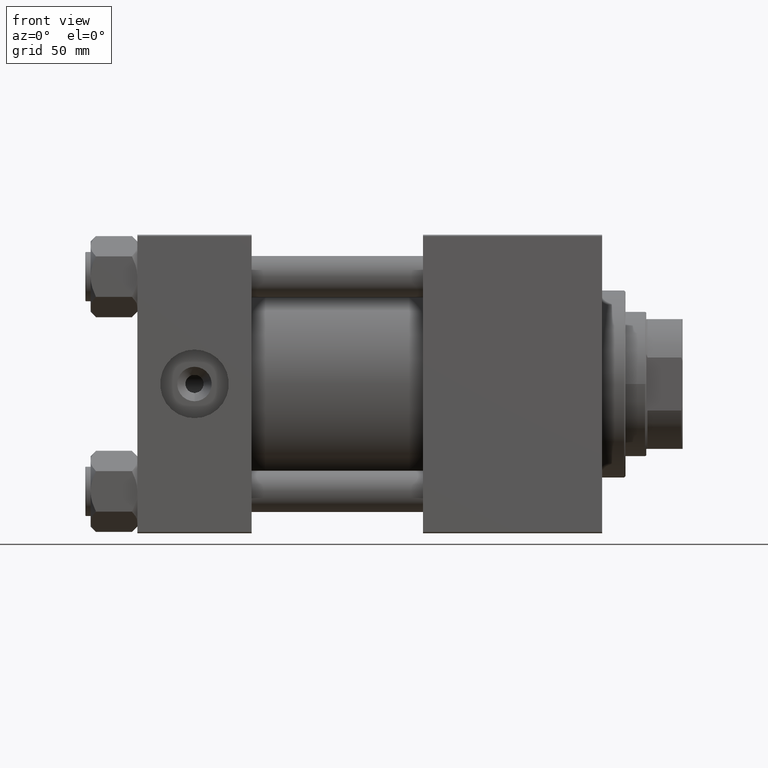
[diagram: clean part render]
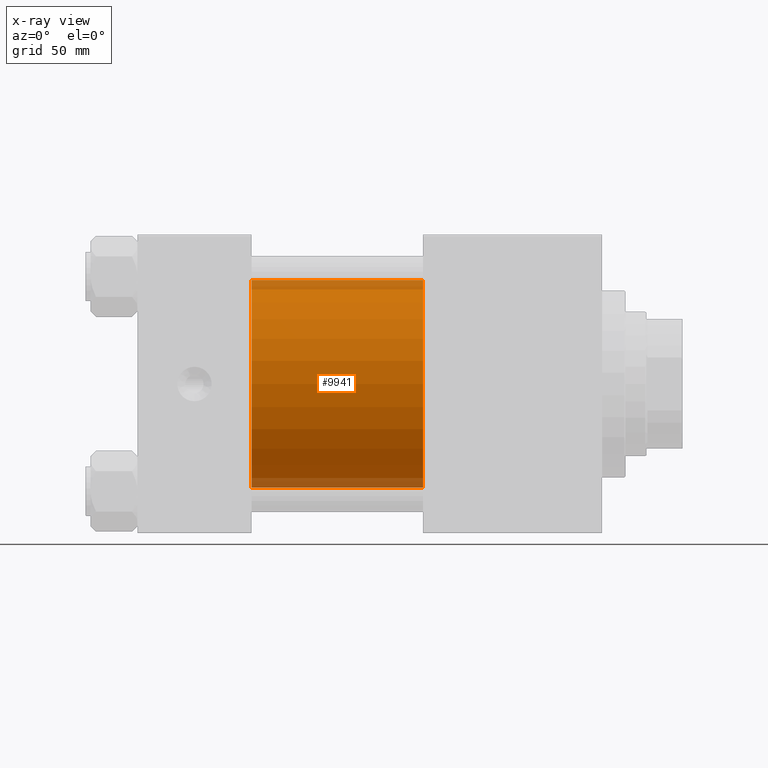
[diagram: x-ray — body ghosted, one internal face saturated and labeled with its STEP entity id]
A machine part, front view, then the same camera in x-ray: the body is ghosted and one INTERNAL B-rep face — a face not visible from any outside direction — is saturated and labeled: STEP entity #9941.
In plain terms, the highlighted cylindrical surface (partial cylindrical patch) has radius 40 mm, axis along (-1, -0, -0).
Its self-contained STEP definition (entity closure, byte-faithful):
#1832 = DIRECTION ( 'NONE',  ( -1.000000000000000000, -0.000000000000000000, -0.000000000000000000 ) ) ;
#3491 = EDGE_CURVE ( 'NONE', #18546, #11628, #15566, .T. ) ;
#3683 = DIRECTION ( 'NONE',  ( 0.000000000000000000, 0.000000000000000000, -1.000000000000000000 ) ) ;
#4247 = VECTOR ( 'NONE', #1832, 1000.000000000000000 ) ;
#5678 = LINE ( 'NONE', #36772, #4247 ) ;
#6640 = CYLINDRICAL_SURFACE ( 'NONE', #17913, 40.00000000000000000 ) ;
#6983 = ORIENTED_EDGE ( 'NONE', *, *, #34691, .F. ) ;
#9941 = ADVANCED_FACE ( 'NONE', ( #27186 ), #6640, .F. ) ;
#11483 = EDGE_CURVE ( 'NONE', #18546, #44287, #39310, .T. ) ;
#11628 = VERTEX_POINT ( 'NONE', #27673 ) ;
#11895 = CARTESIAN_POINT ( 'NONE',  ( 44.00000000000000000, -2.602085213965210642E-15, 0.000000000000000000 ) ) ;
#12039 = AXIS2_PLACEMENT_3D ( 'NONE', #11895, #23695, #3683 ) ;
#13531 = ORIENTED_EDGE ( 'NONE', *, *, #11483, .T. ) ;
#13826 = DIRECTION ( 'NONE',  ( 0.000000000000000000, 0.000000000000000000, -1.000000000000000000 ) ) ;
#15301 = ORIENTED_EDGE ( 'NONE', *, *, #3491, .F. ) ;
#15566 = LINE ( 'NONE', #15816, #21055 ) ;
#15816 = CARTESIAN_POINT ( 'NONE',  ( 110.0000000000000000, -2.602085213965210642E-15, 40.00000000000000000 ) ) ;
#17144 = AXIS2_PLACEMENT_3D ( 'NONE', #22026, #21777, #13826 ) ;
#17913 = AXIS2_PLACEMENT_3D ( 'NONE', #26938, #19216, #26682 ) ;
#18546 = VERTEX_POINT ( 'NONE', #49123 ) ;
#19216 = DIRECTION ( 'NONE',  ( -1.000000000000000000, -0.000000000000000000, -0.000000000000000000 ) ) ;
#19717 = EDGE_LOOP ( 'NONE', ( #13531, #43797, #6983, #15301 ) ) ;
#21055 = VECTOR ( 'NONE', #34607, 1000.000000000000000 ) ;
#21777 = DIRECTION ( 'NONE',  ( 1.000000000000000000, 0.000000000000000000, 0.000000000000000000 ) ) ;
#22026 = CARTESIAN_POINT ( 'NONE',  ( 110.0000000000000000, -2.602085213965210642E-15, 0.000000000000000000 ) ) ;
#23695 = DIRECTION ( 'NONE',  ( 1.000000000000000000, 0.000000000000000000, 0.000000000000000000 ) ) ;
#23944 = CARTESIAN_POINT ( 'NONE',  ( 110.0000000000000000, 2.296501982624201990E-15, -40.00000000000000000 ) ) ;
#26682 = DIRECTION ( 'NONE',  ( 0.000000000000000000, 0.000000000000000000, 1.000000000000000000 ) ) ;
#26938 = CARTESIAN_POINT ( 'NONE',  ( 110.0000000000000000, -2.602085213965210642E-15, 0.000000000000000000 ) ) ;
#27186 = FACE_OUTER_BOUND ( 'NONE', #19717, .T. ) ;
#27673 = CARTESIAN_POINT ( 'NONE',  ( 44.00000000000000000, -2.602085213965210642E-15, 40.00000000000000000 ) ) ;
#31482 = CARTESIAN_POINT ( 'NONE',  ( 44.00000000000000000, 2.296501982624201990E-15, -40.00000000000000000 ) ) ;
#32578 = CIRCLE ( 'NONE', #12039, 40.00000000000000000 ) ;
#34607 = DIRECTION ( 'NONE',  ( -1.000000000000000000, -0.000000000000000000, -0.000000000000000000 ) ) ;
#34691 = EDGE_CURVE ( 'NONE', #11628, #48300, #32578, .T. ) ;
#36772 = CARTESIAN_POINT ( 'NONE',  ( 110.0000000000000000, 2.296501982624201990E-15, -40.00000000000000000 ) ) ;
#39310 = CIRCLE ( 'NONE', #17144, 40.00000000000000000 ) ;
#43797 = ORIENTED_EDGE ( 'NONE', *, *, #50139, .T. ) ;
#44287 = VERTEX_POINT ( 'NONE', #23944 ) ;
#48300 = VERTEX_POINT ( 'NONE', #31482 ) ;
#49123 = CARTESIAN_POINT ( 'NONE',  ( 110.0000000000000000, -2.602085213965210642E-15, 40.00000000000000000 ) ) ;
#50139 = EDGE_CURVE ( 'NONE', #44287, #48300, #5678, .T. ) ;